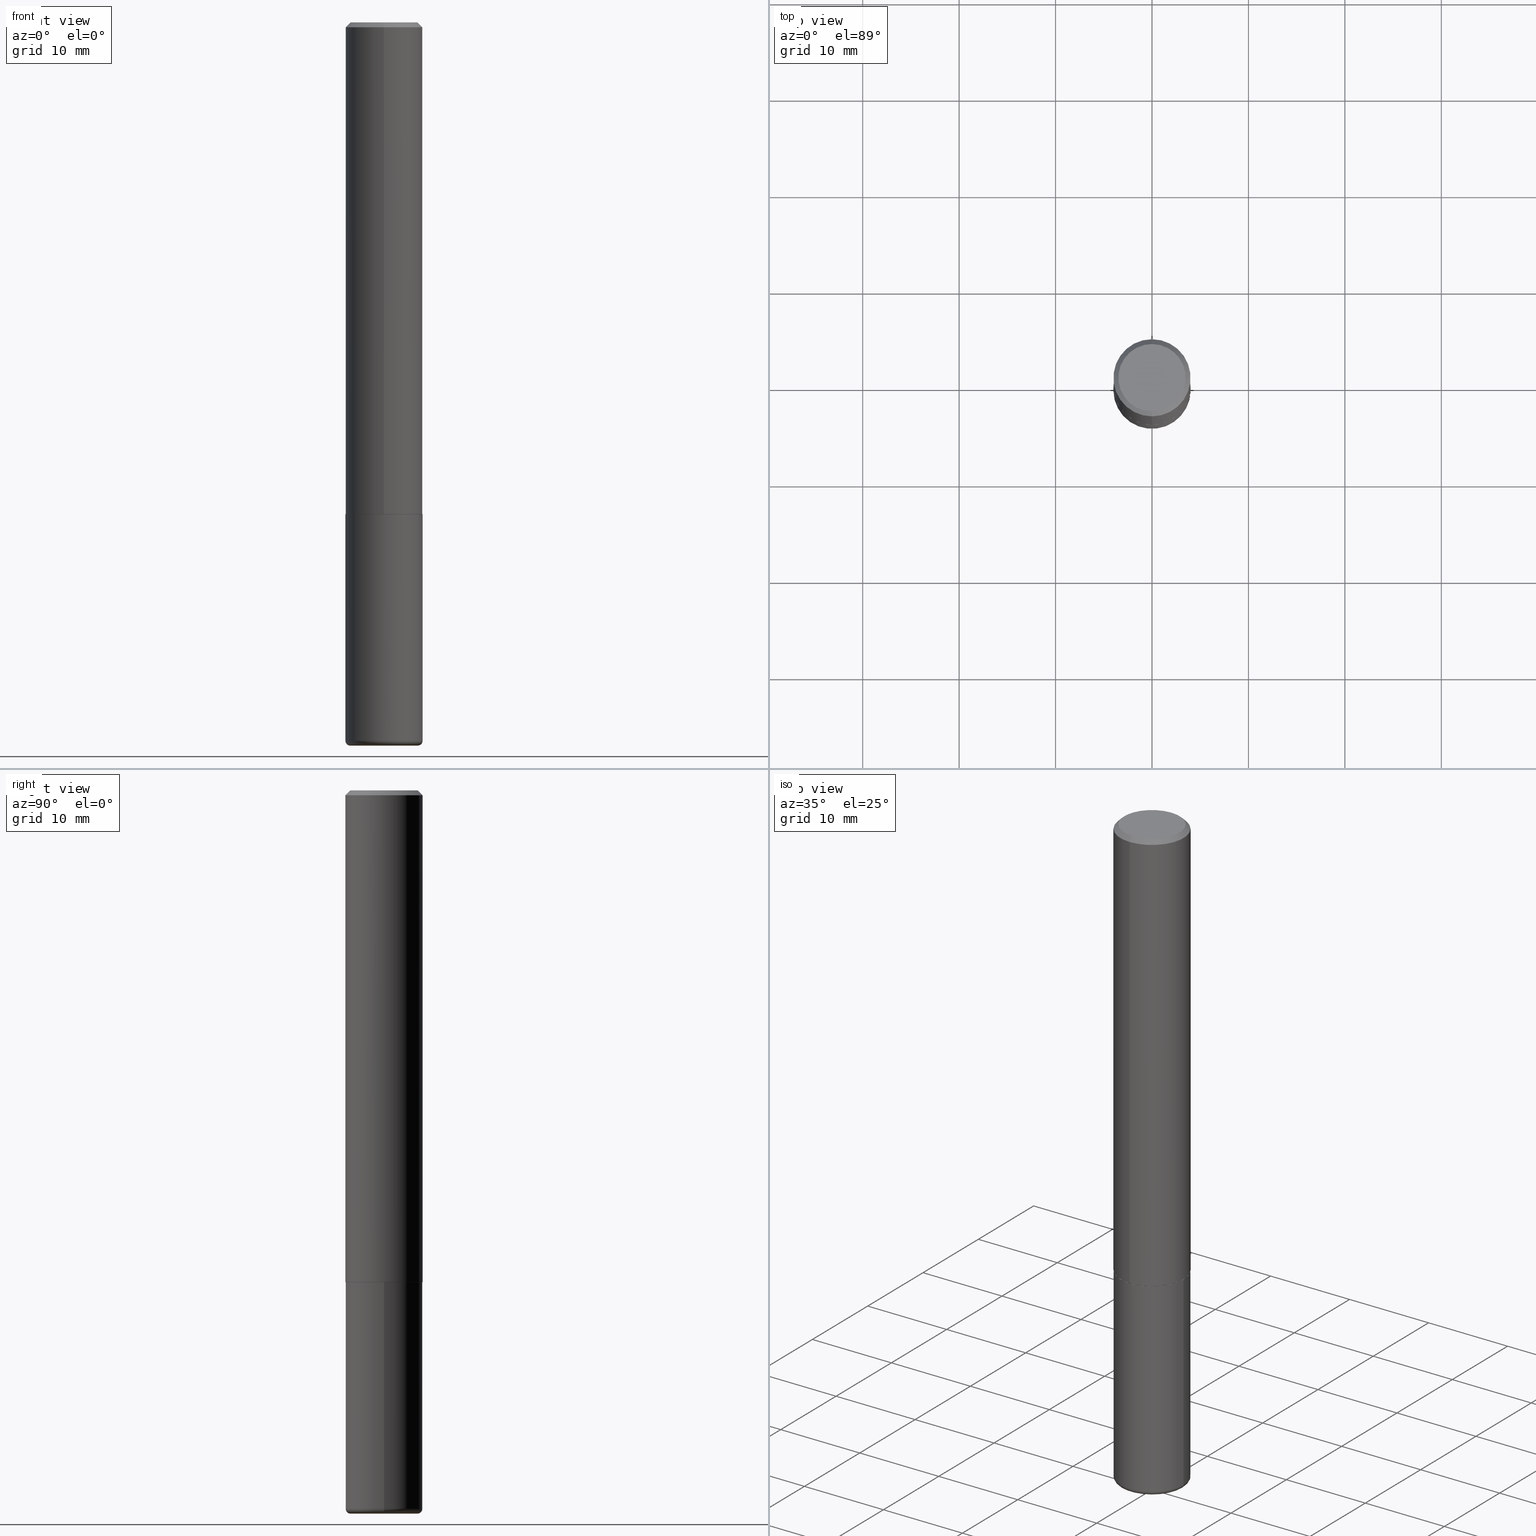
[diagram: canonical four-view strip — front | top / right | iso, engineering-drawing reading convention]
A machine part, canonical four-view strip (front | top / right | iso — engineering-drawing reading convention). The complete STEP part file that produces these views, byte-faithful:
ISO-10303-21;
HEADER;
FILE_DESCRIPTION (( 'STEP AP203' ),
    '1' );
FILE_NAME ('47497.STEP',
    '2024-03-06T03:43:46',
    ( '' ),
    ( '' ),
    'SwSTEP 2.0',
    'SolidWorks 2023',
    '' );
FILE_SCHEMA (( 'CONFIG_CONTROL_DESIGN' ));
ENDSEC;

DATA;
#1 = VERTEX_POINT ( 'NONE', #174 ) ;
#2 = DIRECTION ( 'NONE',  ( -2.444729828315544280E-29, 3.492539597212409932E-15, 1.000000000000000000 ) ) ;
#3 = ORIENTED_EDGE ( 'NONE', *, *, #148, .T. ) ;
#4 = APPROVAL_STATUS ( 'not_yet_approved' ) ;
#5 = FACE_OUTER_BOUND ( 'NONE', #364, .T. ) ;
#6 = EDGE_CURVE ( 'NONE', #332, #349, #303, .T. ) ;
#7 = CARTESIAN_POINT ( 'NONE',  ( 0.1378000000000000058, -1.127189835432120443E-14, -2.952799999999998981 ) ) ;
#8 = CONICAL_SURFACE ( 'NONE', #34, 0.1575000000000000289, 0.7853981633974479459 ) ;
#9 = PERSON_AND_ORGANIZATION_ROLE ( 'creator' ) ;
#10 = APPLICATION_CONTEXT ( 'configuration controlled 3d designs of mechanical parts and assemblies' ) ;
#11 = CARTESIAN_POINT ( 'NONE',  ( 0.1575000000000000011, -8.110362001998737613E-15, -2.007899999999999796 ) ) ;
#12 = CC_DESIGN_DATE_AND_TIME_ASSIGNMENT ( #172, #386, ( #66 ) ) ;
#13 = CIRCLE ( 'NONE', #218, 0.1575000000000000011 ) ;
#14 = CARTESIAN_POINT ( 'NONE',  ( -0.1575000000000000011, -7.506599838789833107E-15, -2.007899999999999796 ) ) ;
#15 = CC_DESIGN_DATE_AND_TIME_ASSIGNMENT ( #54, #57, ( #144 ) ) ;
#16 = DIRECTION ( 'NONE',  ( -2.445468806185136597E-29, 3.491481338843145583E-15, 1.000000000000000000 ) ) ;
#17 = CYLINDRICAL_SURFACE ( 'NONE', #45, 0.1575000000000001399 ) ;
#18 = EDGE_LOOP ( 'NONE', ( #417, #235, #73, #283 ) ) ;
#19 = APPROVAL_PERSON_ORGANIZATION ( #329, #409, #402 ) ;
#20 = ORIENTED_EDGE ( 'NONE', *, *, #362, .T. ) ;
#21 = PLANE ( 'NONE',  #285 ) ;
#22 = ORIENTED_EDGE ( 'NONE', *, *, #317, .T. ) ;
#23 = EDGE_CURVE ( 'NONE', #62, #332, #126, .T. ) ;
#24 = EDGE_CURVE ( 'NONE', #60, #118, #156, .T. ) ;
#25 = DIRECTION ( 'NONE',  ( -2.445468806185136597E-29, 3.491481338843145583E-15, 1.000000000000000000 ) ) ;
#26 = ORIENTED_EDGE ( 'NONE', *, *, #257, .F. ) ;
#27 = CIRCLE ( 'NONE', #143, 0.1378000000000000058 ) ;
#28 = EDGE_LOOP ( 'NONE', ( #298, #228 ) ) ;
#29 = DIRECTION ( 'NONE',  ( -2.445468806185136597E-29, 3.491481338843145583E-15, 1.000000000000000000 ) ) ;
#30 = CARTESIAN_POINT ( 'NONE',  ( 4.910256815939135309E-29, -7.010545380263150922E-15, -2.007899999999999796 ) ) ;
#31 = PRODUCT ( '47497', '47497', '', ( #309 ) ) ;
#32 = EDGE_CURVE ( 'NONE', #1, #369, #137, .T. ) ;
#33 = ORIENTED_EDGE ( 'NONE', *, *, #362, .F. ) ;
#34 = AXIS2_PLACEMENT_3D ( 'NONE', #360, #186, #323 ) ;
#35 = DIRECTION ( 'NONE',  ( -4.937700262164969294E-15, -0.7071067811866054154, 0.7071067811864896191 ) ) ;
#36 = CARTESIAN_POINT ( 'NONE',  ( 0.000000000000000000, 0.000000000000000000, 0.000000000000000000 ) ) ;
#37 = DIRECTION ( 'NONE',  ( -6.982962677686265922E-15, -1.000000000000000000, 3.492539597212410327E-15 ) ) ;
#38 = CYLINDRICAL_SURFACE ( 'NONE', #406, 0.1575000000000000011 ) ;
#39 = DIRECTION ( 'NONE',  ( 1.000000000000000000, -6.982962677686265922E-15, 0.000000000000000000 ) ) ;
#40 = EDGE_CURVE ( 'NONE', #369, #1, #260, .T. ) ;
#41 = AXIS2_PLACEMENT_3D ( 'NONE', #105, #382, #308 ) ;
#42 = ORIENTED_EDGE ( 'NONE', *, *, #40, .T. ) ;
#43 = DATE_AND_TIME ( #356, #244 ) ;
#44 = EDGE_CURVE ( 'NONE', #60, #153, #210, .T. ) ;
#45 = AXIS2_PLACEMENT_3D ( 'NONE', #365, #197, #161 ) ;
#46 = LINE ( 'NONE', #412, #233 ) ;
#47 = CARTESIAN_POINT ( 'NONE',  ( 0.1378000000000000058, -1.120311617194599798E-14, -2.933100000000000041 ) ) ;
#48 = CYLINDRICAL_SURFACE ( 'NONE', #53, 0.1575000000000001399 ) ;
#49 = ORIENTED_EDGE ( 'NONE', *, *, #89, .T. ) ;
#50 = APPROVAL_STATUS ( 'not_yet_approved' ) ;
#51 = CARTESIAN_POINT ( 'NONE',  ( 1.111999381464605505E-15, 0.1564999999999929781, -2.007900000000000240 ) ) ;
#52 = MANIFOLD_SOLID_BREP ( 'Body-Move/Copy2[2]', #81 ) ;
#53 = AXIS2_PLACEMENT_3D ( 'NONE', #400, #261, #230 ) ;
#54 = DATE_AND_TIME ( #150, #292 ) ;
#55 = AXIS2_PLACEMENT_3D ( 'NONE', #36, #111, #64 ) ;
#56 = ADVANCED_FACE ( 'NONE', ( #86 ), #77, .T. ) ;
#57 = DATE_TIME_ROLE ( 'classification_date' ) ;
#58 = CC_DESIGN_PERSON_AND_ORGANIZATION_ASSIGNMENT ( #410, #140, ( #31 ) ) ;
#59 = CARTESIAN_POINT ( 'NONE',  ( -1.099816621735587677E-15, -0.1575000000000001399, 5.500749865609550376E-16 ) ) ;
#60 = VERTEX_POINT ( 'NONE', #344 ) ;
#61 = COORDINATED_UNIVERSAL_TIME_OFFSET ( 5, 0, .BEHIND. ) ;
#62 = VERTEX_POINT ( 'NONE', #212 ) ;
#63 = VECTOR ( 'NONE', #335, 39.37007874015748143 ) ;
#64 = DIRECTION ( 'NONE',  ( 1.000000000000000000, 0.000000000000000000, 0.000000000000000000 ) ) ;
#65 = DIRECTION ( 'NONE',  ( -2.444729828315543719E-29, 3.492539597212410327E-15, 1.000000000000000000 ) ) ;
#66 = PRODUCT_DEFINITION ( 'UNKNOWN', '', #312, #128 ) ;
#67 = ADVANCED_FACE ( 'NONE', ( #377 ), #208, .F. ) ;
#68 = ORIENTED_EDGE ( 'NONE', *, *, #165, .F. ) ;
#69 = EDGE_LOOP ( 'NONE', ( #408, #231, #22, #79 ) ) ;
#70 = DIRECTION ( 'NONE',  ( -2.445468806185136597E-29, 3.491481338843145583E-15, 1.000000000000000000 ) ) ;
#71 = CC_DESIGN_PERSON_AND_ORGANIZATION_ASSIGNMENT ( #221, #359, ( #312 ) ) ;
#72 = CARTESIAN_POINT ( 'NONE',  ( 7.172804555421624566E-29, -1.024086391496083050E-14, -2.933100000000000041 ) ) ;
#73 = ORIENTED_EDGE ( 'NONE', *, *, #317, .F. ) ;
#74 = ORGANIZATION ( 'UNSPECIFIED', 'UNSPECIFIED', '' ) ;
#75 = ORIENTED_EDGE ( 'NONE', *, *, #23, .F. ) ;
#76 = SECURITY_CLASSIFICATION_LEVEL ( 'unclassified' ) ;
#77 = CONICAL_SURFACE ( 'NONE', #82, 0.1575000000000000289, 0.7853981633974479459 ) ;
#78 = DIRECTION ( 'NONE',  ( -2.444729828315544280E-29, 3.492539597212409932E-15, 1.000000000000000000 ) ) ;
#79 = ORIENTED_EDGE ( 'NONE', *, *, #191, .F. ) ;
#80 = PERSON_AND_ORGANIZATION ( #403, #74 ) ;
#81 = CLOSED_SHELL ( 'NONE', ( #397, #280, #56, #348, #319, #342, #67, #120 ) ) ;
#82 = AXIS2_PLACEMENT_3D ( 'NONE', #373, #106, #84 ) ;
#83 = CARTESIAN_POINT ( 'NONE',  ( 0.1575000000000000011, -1.099816621735586889E-15, 7.679978421878598033E-30 ) ) ;
#84 = DIRECTION ( 'NONE',  ( 6.982962677686264344E-15, 1.000000000000000000, -3.496114991891764787E-15 ) ) ;
#85 = VECTOR ( 'NONE', #35, 39.37007874015748143 ) ;
#86 = FACE_OUTER_BOUND ( 'NONE', #69, .T. ) ;
#87 = CARTESIAN_POINT ( 'NONE',  ( -1.092833659057851571E-15, -0.1565000000000069946, -2.007899999999998908 ) ) ;
#88 = CARTESIAN_POINT ( 'NONE',  ( 4.908773022274780866E-29, -7.012670257242796607E-15, -2.007899999999999796 ) ) ;
#89 = EDGE_CURVE ( 'NONE', #167, #62, #189, .T. ) ;
#90 = DIRECTION ( 'NONE',  ( -2.445468806185136597E-29, 3.491481338843145583E-15, 1.000000000000000000 ) ) ;
#91 = APPROVAL_PERSON_ORGANIZATION ( #123, #138, #390 ) ;
#92 = AXIS2_PLACEMENT_3D ( 'NONE', #47, #99, #227 ) ;
#93 = APPROVAL_PERSON_ORGANIZATION ( #281, #295, #113 ) ;
#94 = ORIENTED_EDGE ( 'NONE', *, *, #248, .F. ) ;
#95 = DIRECTION ( 'NONE',  ( 1.000000000000000000, -6.982962677686265922E-15, 4.876176775795935232E-29 ) ) ;
#96 = EDGE_CURVE ( 'NONE', #127, #167, #27, .T. ) ;
#97 = DIRECTION ( 'NONE',  ( 1.000000000000000000, -6.982962677686268288E-15, 0.000000000000000000 ) ) ;
#98 = EDGE_LOOP ( 'NONE', ( #129, #33 ) ) ;
#99 = DIRECTION ( 'NONE',  ( -6.982962677686266711E-15, -1.000000000000000000, 3.491481338843145583E-15 ) ) ;
#100 = ORIENTED_EDGE ( 'NONE', *, *, #191, .T. ) ;
#101 = AXIS2_PLACEMENT_3D ( 'NONE', #258, #202, #97 ) ;
#102 = ORIENTED_EDGE ( 'NONE', *, *, #89, .F. ) ;
#103 = CC_DESIGN_PERSON_AND_ORGANIZATION_ASSIGNMENT ( #318, #9, ( #312 ) ) ;
#104 = APPLICATION_PROTOCOL_DEFINITION ( 'international standard', 'config_control_design', 1994, #238 ) ;
#105 = CARTESIAN_POINT ( 'NONE',  ( 4.908773022274780866E-29, -7.012670257242796607E-15, -2.007899999999999796 ) ) ;
#106 = DIRECTION ( 'NONE',  ( 2.444729828315544280E-29, -3.492539597212409932E-15, -1.000000000000000000 ) ) ;
#107 = EDGE_CURVE ( 'NONE', #349, #213, #416, .T. ) ;
#108 = CIRCLE ( 'NONE', #367, 0.1575000000000002232 ) ;
#109 = CONICAL_SURFACE ( 'NONE', #117, 0.1565000000000000002, 0.7853981633975336552 ) ;
#110 = ORIENTED_EDGE ( 'NONE', *, *, #200, .F. ) ;
#111 = DIRECTION ( 'NONE',  ( 0.000000000000000000, 0.000000000000000000, 1.000000000000000000 ) ) ;
#112 = CARTESIAN_POINT ( 'NONE',  ( 7.220980290903469061E-29, -1.030964609733603695E-14, -2.952799999999998981 ) ) ;
#113 = APPROVAL_ROLE ( '' ) ;
#114 = CARTESIAN_POINT ( 'NONE',  ( -0.1378000000000000058, -9.261736025083411415E-15, -2.933100000000000041 ) ) ;
#115 = COORDINATED_UNIVERSAL_TIME_OFFSET ( 5, 0, .BEHIND. ) ;
#116 = CIRCLE ( 'NONE', #276, 0.1575000000000000289 ) ;
#117 = AXIS2_PLACEMENT_3D ( 'NONE', #88, #305, #214 ) ;
#118 = VERTEX_POINT ( 'NONE', #141 ) ;
#119 = DIRECTION ( 'NONE',  ( -2.444729828315544280E-29, 3.492539597212409932E-15, 1.000000000000000000 ) ) ;
#120 = ADVANCED_FACE ( 'NONE', ( #5 ), #249, .F. ) ;
#121 = AXIS2_PLACEMENT_3D ( 'NONE', #399, #78, #328 ) ;
#122 = ADVANCED_FACE ( 'NONE', ( #180 ), #38, .T. ) ;
#123 = PERSON_AND_ORGANIZATION ( #403, #74 ) ;
#124 = ADVANCED_FACE ( 'NONE', ( #145 ), #243, .T. ) ;
#125 = DIRECTION ( 'NONE',  ( -2.445468806185136597E-29, 3.491481338843145583E-15, 1.000000000000000000 ) ) ;
#126 = CIRCLE ( 'NONE', #142, 0.1575000000000000011 ) ;
#127 = VERTEX_POINT ( 'NONE', #7 ) ;
#128 = DESIGN_CONTEXT ( 'detailed design', #10, 'design' ) ;
#129 = ORIENTED_EDGE ( 'NONE', *, *, #24, .F. ) ;
#130 = VERTEX_POINT ( 'NONE', #404 ) ;
#131 = VECTOR ( 'NONE', #331, 39.37007874015748143 ) ;
#132 = ADVANCED_FACE ( 'NONE', ( #196 ), #296, .T. ) ;
#133 = EDGE_LOOP ( 'NONE', ( #94, #341, #371, #389 ) ) ;
#134 = PERSON_AND_ORGANIZATION ( #403, #74 ) ;
#135 = CARTESIAN_POINT ( 'NONE',  ( 9.601573681818597005E-16, 0.1374999999999997335, -3.414247834255550788E-16 ) ) ;
#136 = DIRECTION ( 'NONE',  ( 1.000000000000000000, -6.982962677686261977E-15, 0.000000000000000000 ) ) ;
#137 = CIRCLE ( 'NONE', #255, 0.1374999999999997335 ) ;
#138 = APPROVAL ( #220, 'UNSPECIFIED' ) ;
#139 = CARTESIAN_POINT ( 'NONE',  ( 4.908773022274780866E-29, -7.012670257242796607E-15, -2.007899999999999796 ) ) ;
#140 = PERSON_AND_ORGANIZATION_ROLE ( 'design_owner' ) ;
#141 = CARTESIAN_POINT ( 'NONE',  ( 1.115552095143406798E-15, 0.1564999999999929781, -2.007900000000000240 ) ) ;
#142 = AXIS2_PLACEMENT_3D ( 'NONE', #246, #215, #136 ) ;
#143 = AXIS2_PLACEMENT_3D ( 'NONE', #112, #90, #353 ) ;
#144 = SECURITY_CLASSIFICATION ( '', '', #76 ) ;
#145 = FACE_OUTER_BOUND ( 'NONE', #275, .T. ) ;
#146 = FACE_OUTER_BOUND ( 'NONE', #338, .T. ) ;
#147 = CARTESIAN_POINT ( 'NONE',  ( -0.1575000000000000011, 1.119104808822157801E-15, -7.747322767151475583E-30 ) ) ;
#148 = EDGE_CURVE ( 'NONE', #130, #153, #394, .T. ) ;
#149 = CC_DESIGN_PERSON_AND_ORGANIZATION_ASSIGNMENT ( #134, #169, ( #66 ) ) ;
#150 = CALENDAR_DATE ( 2024, 5, 3 ) ;
#151 = CARTESIAN_POINT ( 'NONE',  ( -1.080528434649015779E-15, -0.1575000000000000844, -0.01999999999999948347 ) ) ;
#152 = DIRECTION ( 'NONE',  ( -2.444729828315544280E-29, 3.492539597212409932E-15, 1.000000000000000000 ) ) ;
#153 = VERTEX_POINT ( 'NONE', #194 ) ;
#154 = EDGE_CURVE ( 'NONE', #127, #332, #251, .T. ) ;
#155 = DIRECTION ( 'NONE',  ( 5.024295867788490741E-15, 0.7071067811866103003, 0.7071067811864847341 ) ) ;
#156 = CIRCLE ( 'NONE', #41, 0.1565000000000000002 ) ;
#157 = ORIENTED_EDGE ( 'NONE', *, *, #107, .F. ) ;
#158 = CIRCLE ( 'NONE', #168, 0.1378000000000000058 ) ;
#159 = CC_DESIGN_APPROVAL ( #409, ( #144 ) ) ;
#160 = ADVANCED_BREP_SHAPE_REPRESENTATION ( '47497', ( #171, #52, #55 ), #277 ) ;
#161 = DIRECTION ( 'NONE',  ( -6.982962677686265133E-15, -1.000000000000000000, 3.492539597212409932E-15 ) ) ;
#162 = ORIENTED_EDGE ( 'NONE', *, *, #304, .T. ) ;
#163 = UNCERTAINTY_MEASURE_WITH_UNIT (LENGTH_MEASURE( 1.000000000000000082E-05 ), #378, 'distance_accuracy_value', 'NONE');
#164 = EDGE_LOOP ( 'NONE', ( #350, #3, #162, #247 ) ) ;
#165 = EDGE_CURVE ( 'NONE', #332, #62, #13, .T. ) ;
#166 = CALENDAR_DATE ( 2024, 5, 3 ) ;
#167 = VERTEX_POINT ( 'NONE', #368 ) ;
#168 = AXIS2_PLACEMENT_3D ( 'NONE', #266, #29, #39 ) ;
#169 = PERSON_AND_ORGANIZATION_ROLE ( 'creator' ) ;
#170 = DIRECTION ( 'NONE',  ( 7.105427357601001859E-15, 1.000000000000000000, -3.491481338843145583E-15 ) ) ;
#171 = MANIFOLD_SOLID_BREP ( 'Body-Move/Copy2[1]', #284 ) ;
#172 = DATE_AND_TIME ( #271, #337 ) ;
#173 = ORIENTED_EDGE ( 'NONE', *, *, #154, .F. ) ;
#174 = CARTESIAN_POINT ( 'NONE',  ( -1.011923454671299856E-15, -0.1374999999999997335, 7.578230169990059811E-16 ) ) ;
#175 = AXIS2_PLACEMENT_3D ( 'NONE', #30, #70, #177 ) ;
#176 = LENGTH_MEASURE_WITH_UNIT ( LENGTH_MEASURE( 0.02539999999999999897 ), #352 );
#177 = DIRECTION ( 'NONE',  ( 1.000000000000000000, -6.982962677686268288E-15, 0.000000000000000000 ) ) ;
#178 = EDGE_CURVE ( 'NONE', #130, #411, #201, .T. ) ;
#179 = ORIENTED_EDGE ( 'NONE', *, *, #32, .T. ) ;
#180 = FACE_OUTER_BOUND ( 'NONE', #351, .T. ) ;
#181 = ORIENTED_EDGE ( 'NONE', *, *, #209, .F. ) ;
#182 = APPROVAL_DATE_TIME ( #43, #138 ) ;
#183 = AXIS2_PLACEMENT_3D ( 'NONE', #114, #170, #306 ) ;
#184 = CARTESIAN_POINT ( 'NONE',  ( 0.1574999999999998346, -1.134068053669641403E-14, -2.933100000000000041 ) ) ;
#185 = ORIENTED_EDGE ( 'NONE', *, *, #44, .F. ) ;
#186 = DIRECTION ( 'NONE',  ( 2.444729828315544280E-29, -3.492539597212409932E-15, -1.000000000000000000 ) ) ;
#187 = DIRECTION ( 'NONE',  ( 4.937700262164545676E-15, 0.7071067811865447972, -0.7071067811865502373 ) ) ;
#188 = CC_DESIGN_PERSON_AND_ORGANIZATION_ASSIGNMENT ( #80, #391, ( #144 ) ) ;
#189 = CIRCLE ( 'NONE', #183, 0.01969999999999962059 ) ;
#190 = DIRECTION ( 'NONE',  ( 1.000000000000000000, -6.982962677686266711E-15, 4.883557194083112901E-29 ) ) ;
#191 = EDGE_CURVE ( 'NONE', #369, #411, #46, .T. ) ;
#192 = CARTESIAN_POINT ( 'NONE',  ( 0.000000000000000000, 0.000000000000000000, 0.000000000000000000 ) ) ;
#193 = DIRECTION ( 'NONE',  ( -2.444729828315544280E-29, 3.492539597212409932E-15, 1.000000000000000000 ) ) ;
#194 = CARTESIAN_POINT ( 'NONE',  ( -1.099816621735539360E-15, -0.1575000000000072453, -2.006899999999999018 ) ) ;
#195 = ORIENTED_EDGE ( 'NONE', *, *, #44, .T. ) ;
#196 = FACE_OUTER_BOUND ( 'NONE', #133, .T. ) ;
#197 = DIRECTION ( 'NONE',  ( -2.444729828315544280E-29, 3.492539597212409932E-15, 1.000000000000000000 ) ) ;
#198 = ORIENTED_EDGE ( 'NONE', *, *, #24, .T. ) ;
#199 = AXIS2_PLACEMENT_3D ( 'NONE', #286, #119, #223 ) ;
#200 = EDGE_CURVE ( 'NONE', #153, #130, #108, .T. ) ;
#201 = LINE ( 'NONE', #414, #291 ) ;
#202 = DIRECTION ( 'NONE',  ( -2.445468806185136597E-29, 3.491481338843145583E-15, 1.000000000000000000 ) ) ;
#203 = LINE ( 'NONE', #51, #222 ) ;
#204 = EDGE_CURVE ( 'NONE', #213, #349, #357, .T. ) ;
#205 = ORIENTED_EDGE ( 'NONE', *, *, #148, .F. ) ;
#206 = DIRECTION ( 'NONE',  ( 1.000000000000000000, -6.982962677686266711E-15, 4.883557194083112901E-29 ) ) ;
#207 = CARTESIAN_POINT ( 'NONE',  ( -6.786541213832790321E-45, 9.695248793097192351E-31, 2.775988223823005522E-16 ) ) ;
#208 = PLANE ( 'NONE',  #256 ) ;
#209 = EDGE_CURVE ( 'NONE', #167, #127, #158, .T. ) ;
#210 = LINE ( 'NONE', #87, #85 ) ;
#211 = DIRECTION ( 'NONE',  ( -2.444729828315544280E-29, 3.492539597212409932E-15, 1.000000000000000000 ) ) ;
#212 = CARTESIAN_POINT ( 'NONE',  ( -0.1574999999999998346, -9.121759106138672895E-15, -2.933100000000000041 ) ) ;
#213 = VERTEX_POINT ( 'NONE', #14 ) ;
#214 = DIRECTION ( 'NONE',  ( -6.982962677686265922E-15, -1.000000000000000000, 3.491179544618866730E-15 ) ) ;
#215 = DIRECTION ( 'NONE',  ( -2.445468806185136597E-29, 3.491481338843145583E-15, 1.000000000000000000 ) ) ;
#216 = VECTOR ( 'NONE', #370, 39.37007874015748143 ) ;
#217 = DIMENSIONAL_EXPONENTS ( 1.000000000000000000, 0.000000000000000000, 0.000000000000000000, 0.000000000000000000, 0.000000000000000000, 0.000000000000000000, 0.000000000000000000 ) ;
#218 = AXIS2_PLACEMENT_3D ( 'NONE', #229, #16, #232 ) ;
#219 = CARTESIAN_POINT ( 'NONE',  ( 1.539641889943640501E-28, 1.398047307151391125E-15, -2.952799999999998981 ) ) ;
#220 = APPROVAL_STATUS ( 'not_yet_approved' ) ;
#221 = PERSON_AND_ORGANIZATION ( #403, #74 ) ;
#222 = VECTOR ( 'NONE', #155, 39.37007874015748143 ) ;
#223 = DIRECTION ( 'NONE',  ( -6.982962677686265922E-15, -1.000000000000000000, 3.491179544618866730E-15 ) ) ;
#224 = FACE_OUTER_BOUND ( 'NONE', #339, .T. ) ;
#225 = AXIS2_PLACEMENT_3D ( 'NONE', #265, #193, #392 ) ;
#226 = LOCAL_TIME ( 22, 43, 46.00000000000000000, #61 ) ;
#227 = DIRECTION ( 'NONE',  ( 1.000000000000000000, -6.982962677686265133E-15, 0.000000000000000000 ) ) ;
#228 = ORIENTED_EDGE ( 'NONE', *, *, #204, .T. ) ;
#229 = CARTESIAN_POINT ( 'NONE',  ( 7.172804555421624566E-29, -1.024086391496083050E-14, -2.933100000000000041 ) ) ;
#230 = DIRECTION ( 'NONE',  ( -6.982962677686265133E-15, -1.000000000000000000, 3.492539597212409932E-15 ) ) ;
#231 = ORIENTED_EDGE ( 'NONE', *, *, #380, .T. ) ;
#232 = DIRECTION ( 'NONE',  ( 1.000000000000000000, -6.982962677686261977E-15, 0.000000000000000000 ) ) ;
#233 = VECTOR ( 'NONE', #187, 39.37007874015748143 ) ;
#234 = LINE ( 'NONE', #59, #216 ) ;
#235 = ORIENTED_EDGE ( 'NONE', *, *, #178, .T. ) ;
#236 = APPLICATION_PROTOCOL_DEFINITION ( 'international standard', 'config_control_design', 1994, #10 ) ;
#237 = CARTESIAN_POINT ( 'NONE',  ( -6.786541213832790321E-45, 9.695248793097192351E-31, 2.775988223823005522E-16 ) ) ;
#238 = APPLICATION_CONTEXT ( 'configuration controlled 3d designs of mechanical parts and assemblies' ) ;
#239 = CALENDAR_DATE ( 2024, 5, 3 ) ;
#240 =( NAMED_UNIT ( * ) SI_UNIT ( $, .STERADIAN. ) SOLID_ANGLE_UNIT ( ) );
#241 = ADVANCED_FACE ( 'NONE', ( #302 ), #320, .F. ) ;
#242 = VERTEX_POINT ( 'NONE', #151 ) ;
#243 = TOROIDAL_SURFACE ( 'NONE', #376, 0.1378000000000000058, 0.01969999999999962059 ) ;
#244 = LOCAL_TIME ( 22, 43, 46.00000000000000000, #115 ) ;
#245 = DIRECTION ( 'NONE',  ( 2.438088387897960049E-29, -3.491481338843145188E-15, -1.000000000000000000 ) ) ;
#246 = CARTESIAN_POINT ( 'NONE',  ( 7.172804555421624566E-29, -1.024086391496083050E-14, -2.933100000000000041 ) ) ;
#247 = ORIENTED_EDGE ( 'NONE', *, *, #326, .F. ) ;
#248 = EDGE_CURVE ( 'NONE', #62, #213, #322, .T. ) ;
#249 = PLANE ( 'NONE',  #363 ) ;
#250 = SHAPE_DEFINITION_REPRESENTATION ( #282, #160 ) ;
#251 = CIRCLE ( 'NONE', #92, 0.01969999999999962059 ) ;
#252 = CC_DESIGN_APPROVAL ( #295, ( #66 ) ) ;
#253 = DIRECTION ( 'NONE',  ( -2.445468806185136597E-29, 3.491481338843145583E-15, 1.000000000000000000 ) ) ;
#254 = EDGE_LOOP ( 'NONE', ( #396, #181 ) ) ;
#255 = AXIS2_PLACEMENT_3D ( 'NONE', #207, #379, #310 ) ;
#256 = AXIS2_PLACEMENT_3D ( 'NONE', #139, #65, #278 ) ;
#257 = EDGE_CURVE ( 'NONE', #118, #130, #203, .T. ) ;
#258 = CARTESIAN_POINT ( 'NONE',  ( 4.910256815939135309E-29, -7.010545380263150922E-15, -2.007899999999999796 ) ) ;
#259 = COORDINATED_UNIVERSAL_TIME_OFFSET ( 5, 0, .BEHIND. ) ;
#260 = CIRCLE ( 'NONE', #311, 0.1374999999999997335 ) ;
#261 = DIRECTION ( 'NONE',  ( -2.444729828315544280E-29, 3.492539597212409932E-15, 1.000000000000000000 ) ) ;
#262 = ORIENTED_EDGE ( 'NONE', *, *, #257, .T. ) ;
#263 = LINE ( 'NONE', #398, #63 ) ;
#264 = FACE_OUTER_BOUND ( 'NONE', #300, .T. ) ;
#265 = CARTESIAN_POINT ( 'NONE',  ( 4.908773022274780866E-29, -7.012670257242796607E-15, -2.007899999999999796 ) ) ;
#266 = CARTESIAN_POINT ( 'NONE',  ( 7.220980290903469061E-29, -1.030964609733603695E-14, -2.952799999999998981 ) ) ;
#267 = CIRCLE ( 'NONE', #336, 0.1575000000000000289 ) ;
#268 = ORIENTED_EDGE ( 'NONE', *, *, #6, .F. ) ;
#269 = CARTESIAN_POINT ( 'NONE',  ( 1.099816621735587480E-15, 0.1574999999999999456, -0.02000000000000058328 ) ) ;
#270 = EDGE_LOOP ( 'NONE', ( #198, #262, #110, #185 ) ) ;
#271 = CALENDAR_DATE ( 2024, 5, 3 ) ;
#272 = ORIENTED_EDGE ( 'NONE', *, *, #154, .T. ) ;
#273 =( NAMED_UNIT ( * ) PLANE_ANGLE_UNIT ( ) SI_UNIT ( $, .RADIAN. ) );
#274 = DIRECTION ( 'NONE',  ( -2.444729828315544280E-29, 3.492539597212410327E-15, 1.000000000000000000 ) ) ;
#275 = EDGE_LOOP ( 'NONE', ( #102, #383, #272, #75 ) ) ;
#276 = AXIS2_PLACEMENT_3D ( 'NONE', #340, #152, #395 ) ;
#277 =( GEOMETRIC_REPRESENTATION_CONTEXT ( 3 ) GLOBAL_UNCERTAINTY_ASSIGNED_CONTEXT ( ( #163 ) ) GLOBAL_UNIT_ASSIGNED_CONTEXT ( ( #378, #273, #240 ) ) REPRESENTATION_CONTEXT ( 'NONE', 'WORKASPACE' ) );
#278 = DIRECTION ( 'NONE',  ( -6.982962677686265922E-15, -1.000000000000000000, 3.492539597212410327E-15 ) ) ;
#279 = ADVANCED_FACE ( 'NONE', ( #264 ), #354, .T. ) ;
#280 = ADVANCED_FACE ( 'NONE', ( #407 ), #48, .T. ) ;
#281 = PERSON_AND_ORGANIZATION ( #403, #74 ) ;
#282 = PRODUCT_DEFINITION_SHAPE ( 'NONE', 'NONE',  #66 ) ;
#283 = ORIENTED_EDGE ( 'NONE', *, *, #304, .F. ) ;
#284 = CLOSED_SHELL ( 'NONE', ( #122, #279, #241, #132, #124, #385 ) ) ;
#285 = AXIS2_PLACEMENT_3D ( 'NONE', #219, #245, #381 ) ;
#286 = CARTESIAN_POINT ( 'NONE',  ( 4.908773022274780866E-29, -7.012670257242796607E-15, -2.007899999999999796 ) ) ;
#287 = DIRECTION ( 'NONE',  ( -2.445468806185136597E-29, 3.491481338843145583E-15, 1.000000000000000000 ) ) ;
#288 = AXIS2_PLACEMENT_3D ( 'NONE', #289, #307, #384 ) ;
#289 = CARTESIAN_POINT ( 'NONE',  ( 4.910256815939135309E-29, -7.010545380263150922E-15, -2.007899999999999796 ) ) ;
#290 = FACE_OUTER_BOUND ( 'NONE', #164, .T. ) ;
#291 = VECTOR ( 'NONE', #274, 39.37007874015748143 ) ;
#292 = LOCAL_TIME ( 22, 43, 46.00000000000000000, #259 ) ;
#293 = ORIENTED_EDGE ( 'NONE', *, *, #380, .F. ) ;
#294 = FACE_OUTER_BOUND ( 'NONE', #254, .T. ) ;
#295 = APPROVAL ( #4, 'UNSPECIFIED' ) ;
#296 = CYLINDRICAL_SURFACE ( 'NONE', #343, 0.1575000000000000011 ) ;
#297 = CARTESIAN_POINT ( 'NONE',  ( 4.889459656631096617E-31, -6.985079194424830218E-17, -0.02000000000000003511 ) ) ;
#298 = ORIENTED_EDGE ( 'NONE', *, *, #107, .T. ) ;
#299 = CARTESIAN_POINT ( 'NONE',  ( 7.172804555421624566E-29, -1.024086391496083050E-14, -2.933100000000000041 ) ) ;
#300 = EDGE_LOOP ( 'NONE', ( #366, #49, #68, #173 ) ) ;
#301 = AXIS2_PLACEMENT_3D ( 'NONE', #299, #25, #206 ) ;
#302 = FACE_OUTER_BOUND ( 'NONE', #28, .T. ) ;
#303 = LINE ( 'NONE', #83, #334 ) ;
#304 = EDGE_CURVE ( 'NONE', #153, #242, #234, .T. ) ;
#305 = DIRECTION ( 'NONE',  ( -2.444729828315544280E-29, 3.492539597212409932E-15, 1.000000000000000000 ) ) ;
#306 = DIRECTION ( 'NONE',  ( -1.000000000000000000, 7.105427357600965571E-15, 0.000000000000000000 ) ) ;
#307 = DIRECTION ( 'NONE',  ( 2.438088387897960049E-29, -3.491481338843145188E-15, -1.000000000000000000 ) ) ;
#308 = DIRECTION ( 'NONE',  ( -6.982962677686265922E-15, -1.000000000000000000, 3.491179544618866730E-15 ) ) ;
#309 = MECHANICAL_CONTEXT ( 'NONE', #238, 'mechanical' ) ;
#310 = DIRECTION ( 'NONE',  ( -6.982962677686265922E-15, -1.000000000000000000, 3.492539597212410327E-15 ) ) ;
#311 = AXIS2_PLACEMENT_3D ( 'NONE', #237, #314, #37 ) ;
#312 = PRODUCT_DEFINITION_FORMATION_WITH_SPECIFIED_SOURCE ( 'ANY', '', #31, .NOT_KNOWN. ) ;
#313 = COORDINATED_UNIVERSAL_TIME_OFFSET ( 5, 0, .BEHIND. ) ;
#314 = DIRECTION ( 'NONE',  ( -2.444729828315544280E-29, 3.492539597212409932E-15, 1.000000000000000000 ) ) ;
#315 = DIRECTION ( 'NONE',  ( 2.444729828315543719E-29, -3.492539597212410327E-15, -1.000000000000000000 ) ) ;
#316 = DIRECTION ( 'NONE',  ( -6.982962677686265922E-15, -1.000000000000000000, 3.469013325287948560E-15 ) ) ;
#317 = EDGE_CURVE ( 'NONE', #242, #411, #116, .T. ) ;
#318 = PERSON_AND_ORGANIZATION ( #403, #74 ) ;
#319 = ADVANCED_FACE ( 'NONE', ( #290 ), #17, .T. ) ;
#320 = PLANE ( 'NONE',  #288 ) ;
#321 = DIRECTION ( 'NONE',  ( 6.982962677686265922E-15, 1.000000000000000000, -3.492539597212410327E-15 ) ) ;
#322 = LINE ( 'NONE', #147, #131 ) ;
#323 = DIRECTION ( 'NONE',  ( 6.982962677686264344E-15, 1.000000000000000000, -3.496114991891764787E-15 ) ) ;
#324 = CARTESIAN_POINT ( 'NONE',  ( 0.000000000000000000, 0.000000000000000000, 0.000000000000000000 ) ) ;
#325 = ORIENTED_EDGE ( 'NONE', *, *, #326, .T. ) ;
#326 = EDGE_CURVE ( 'NONE', #411, #242, #267, .T. ) ;
#327 = CIRCLE ( 'NONE', #225, 0.1565000000000000002 ) ;
#328 = DIRECTION ( 'NONE',  ( -6.982962677686265922E-15, -1.000000000000000000, 3.469013325287948560E-15 ) ) ;
#329 = PERSON_AND_ORGANIZATION ( #403, #74 ) ;
#330 = CARTESIAN_POINT ( 'NONE',  ( 1.029986994958723590E-15, 0.1374999999999997335, -2.026253722344048274E-16 ) ) ;
#331 = DIRECTION ( 'NONE',  ( -2.445468806185136877E-29, 3.491481338843145188E-15, 1.000000000000000000 ) ) ;
#332 = VERTEX_POINT ( 'NONE', #184 ) ;
#333 = CARTESIAN_POINT ( 'NONE',  ( 4.906328292446464760E-29, -7.009177717645583542E-15, -2.006899999999999462 ) ) ;
#334 = VECTOR ( 'NONE', #415, 39.37007874015748143 ) ;
#335 = DIRECTION ( 'NONE',  ( -4.851104656540961908E-15, -0.7071067811865496822, -0.7071067811865453523 ) ) ;
#336 = AXIS2_PLACEMENT_3D ( 'NONE', #297, #211, #387 ) ;
#337 = LOCAL_TIME ( 22, 43, 46.00000000000000000, #347 ) ;
#338 = EDGE_LOOP ( 'NONE', ( #26, #20, #195, #205 ) ) ;
#339 = EDGE_LOOP ( 'NONE', ( #293, #405, #100, #325 ) ) ;
#340 = CARTESIAN_POINT ( 'NONE',  ( 4.889459656631096617E-31, -6.985079194424830218E-17, -0.02000000000000003511 ) ) ;
#341 = ORIENTED_EDGE ( 'NONE', *, *, #23, .T. ) ;
#342 = ADVANCED_FACE ( 'NONE', ( #146 ), #388, .T. ) ;
#343 = AXIS2_PLACEMENT_3D ( 'NONE', #192, #125, #393 ) ;
#344 = CARTESIAN_POINT ( 'NONE',  ( -1.092833659057851571E-15, -0.1565000000000069946, -2.007899999999998908 ) ) ;
#345 = CC_DESIGN_APPROVAL ( #138, ( #312 ) ) ;
#346 = APPROVAL_DATE_TIME ( #374, #409 ) ;
#347 = COORDINATED_UNIVERSAL_TIME_OFFSET ( 5, 0, .BEHIND. ) ;
#348 = ADVANCED_FACE ( 'NONE', ( #224 ), #8, .T. ) ;
#349 = VERTEX_POINT ( 'NONE', #11 ) ;
#350 = ORIENTED_EDGE ( 'NONE', *, *, #178, .F. ) ;
#351 = EDGE_LOOP ( 'NONE', ( #361, #401, #157, #268 ) ) ;
#352 =( LENGTH_UNIT ( ) NAMED_UNIT ( * ) SI_UNIT ( $, .METRE. ) );
#353 = DIRECTION ( 'NONE',  ( 1.000000000000000000, -6.982962677686265922E-15, 0.000000000000000000 ) ) ;
#354 = TOROIDAL_SURFACE ( 'NONE', #301, 0.1378000000000000058, 0.01969999999999962059 ) ;
#355 = PRODUCT_RELATED_PRODUCT_CATEGORY ( 'detail', '', ( #31 ) ) ;
#356 = CALENDAR_DATE ( 2024, 5, 3 ) ;
#357 = CIRCLE ( 'NONE', #101, 0.1575000000000000011 ) ;
#358 = LOCAL_TIME ( 22, 43, 46.00000000000000000, #313 ) ;
#359 = PERSON_AND_ORGANIZATION_ROLE ( 'design_supplier' ) ;
#360 = CARTESIAN_POINT ( 'NONE',  ( 4.889459656631096617E-31, -6.985079194424830218E-17, -0.02000000000000003511 ) ) ;
#361 = ORIENTED_EDGE ( 'NONE', *, *, #165, .T. ) ;
#362 = EDGE_CURVE ( 'NONE', #118, #60, #327, .T. ) ;
#363 = AXIS2_PLACEMENT_3D ( 'NONE', #135, #315, #321 ) ;
#364 = EDGE_LOOP ( 'NONE', ( #42, #179 ) ) ;
#365 = CARTESIAN_POINT ( 'NONE',  ( 0.000000000000000000, 0.000000000000000000, 0.000000000000000000 ) ) ;
#366 = ORIENTED_EDGE ( 'NONE', *, *, #96, .T. ) ;
#367 = AXIS2_PLACEMENT_3D ( 'NONE', #333, #2, #316 ) ;
#368 = CARTESIAN_POINT ( 'NONE',  ( -0.1378000000000000058, -9.226138656798647747E-15, -2.952799999999998981 ) ) ;
#369 = VERTEX_POINT ( 'NONE', #330 ) ;
#370 = DIRECTION ( 'NONE',  ( -2.444729828315544280E-29, 3.492539597212410327E-15, 1.000000000000000000 ) ) ;
#371 = ORIENTED_EDGE ( 'NONE', *, *, #6, .T. ) ;
#372 = APPROVAL_DATE_TIME ( #375, #295 ) ;
#373 = CARTESIAN_POINT ( 'NONE',  ( 4.889459656631096617E-31, -6.985079194424830218E-17, -0.02000000000000003511 ) ) ;
#374 = DATE_AND_TIME ( #239, #358 ) ;
#375 = DATE_AND_TIME ( #166, #226 ) ;
#376 = AXIS2_PLACEMENT_3D ( 'NONE', #72, #253, #190 ) ;
#377 = FACE_OUTER_BOUND ( 'NONE', #98, .T. ) ;
#378 =( CONVERSION_BASED_UNIT ( 'INCH', #176 ) LENGTH_UNIT ( ) NAMED_UNIT ( #217 ) );
#379 = DIRECTION ( 'NONE',  ( -2.444729828315544280E-29, 3.492539597212409932E-15, 1.000000000000000000 ) ) ;
#380 = EDGE_CURVE ( 'NONE', #1, #242, #263, .T. ) ;
#381 = DIRECTION ( 'NONE',  ( -1.000000000000000000, 6.982962677686265922E-15, -4.876176775795935793E-29 ) ) ;
#382 = DIRECTION ( 'NONE',  ( -2.444729828315544280E-29, 3.492539597212409932E-15, 1.000000000000000000 ) ) ;
#383 = ORIENTED_EDGE ( 'NONE', *, *, #209, .T. ) ;
#384 = DIRECTION ( 'NONE',  ( -1.000000000000000000, 6.982962677686265922E-15, -4.876176775795935793E-29 ) ) ;
#385 = ADVANCED_FACE ( 'NONE', ( #294 ), #21, .T. ) ;
#386 = DATE_TIME_ROLE ( 'creation_date' ) ;
#387 = DIRECTION ( 'NONE',  ( -6.982962677686264344E-15, -1.000000000000000000, 3.496114991891764787E-15 ) ) ;
#388 = CONICAL_SURFACE ( 'NONE', #199, 0.1565000000000000002, 0.7853981633975336552 ) ;
#389 = ORIENTED_EDGE ( 'NONE', *, *, #204, .F. ) ;
#390 = APPROVAL_ROLE ( '' ) ;
#391 = PERSON_AND_ORGANIZATION_ROLE ( 'classification_officer' ) ;
#392 = DIRECTION ( 'NONE',  ( -6.982962677686265922E-15, -1.000000000000000000, 3.491179544618866730E-15 ) ) ;
#393 = DIRECTION ( 'NONE',  ( 1.000000000000000000, -6.982962677686265922E-15, 4.876176775795935232E-29 ) ) ;
#394 = CIRCLE ( 'NONE', #121, 0.1575000000000002232 ) ;
#395 = DIRECTION ( 'NONE',  ( -6.982962677686264344E-15, -1.000000000000000000, 3.496114991891764787E-15 ) ) ;
#396 = ORIENTED_EDGE ( 'NONE', *, *, #96, .F. ) ;
#397 = ADVANCED_FACE ( 'NONE', ( #413 ), #109, .T. ) ;
#398 = CARTESIAN_POINT ( 'NONE',  ( -1.080528434649015779E-15, -0.1575000000000000844, -0.01999999999999948347 ) ) ;
#399 = CARTESIAN_POINT ( 'NONE',  ( 4.906328292446464760E-29, -7.009177717645583542E-15, -2.006899999999999462 ) ) ;
#400 = CARTESIAN_POINT ( 'NONE',  ( 0.000000000000000000, 0.000000000000000000, 0.000000000000000000 ) ) ;
#401 = ORIENTED_EDGE ( 'NONE', *, *, #248, .T. ) ;
#402 = APPROVAL_ROLE ( '' ) ;
#403 = PERSON ( 'UNSPECIFIED', 'UNSPECIFIED', 'UNSPECIFIED', ('UNSPECIFIED'), ('UNSPECIFIED'), ('UNSPECIFIED') ) ;
#404 = CARTESIAN_POINT ( 'NONE',  ( 1.119104808822183439E-15, 0.1574999999999932287, -2.006899999999999906 ) ) ;
#405 = ORIENTED_EDGE ( 'NONE', *, *, #40, .F. ) ;
#406 = AXIS2_PLACEMENT_3D ( 'NONE', #324, #287, #95 ) ;
#407 = FACE_OUTER_BOUND ( 'NONE', #18, .T. ) ;
#408 = ORIENTED_EDGE ( 'NONE', *, *, #32, .F. ) ;
#409 = APPROVAL ( #50, 'UNSPECIFIED' ) ;
#410 = PERSON_AND_ORGANIZATION ( #403, #74 ) ;
#411 = VERTEX_POINT ( 'NONE', #269 ) ;
#412 = CARTESIAN_POINT ( 'NONE',  ( 1.099816621735587480E-15, 0.1574999999999999456, -0.02000000000000058328 ) ) ;
#413 = FACE_OUTER_BOUND ( 'NONE', #270, .T. ) ;
#414 = CARTESIAN_POINT ( 'NONE',  ( 1.119104808822158392E-15, 0.1575000000000001399, -5.500749865609550376E-16 ) ) ;
#415 = DIRECTION ( 'NONE',  ( -2.445468806185136877E-29, 3.491481338843145188E-15, 1.000000000000000000 ) ) ;
#416 = CIRCLE ( 'NONE', #175, 0.1575000000000000011 ) ;
#417 = ORIENTED_EDGE ( 'NONE', *, *, #200, .T. ) ;
#418 = CC_DESIGN_SECURITY_CLASSIFICATION ( #144, ( #312 ) ) ;
ENDSEC;
END-ISO-10303-21;
